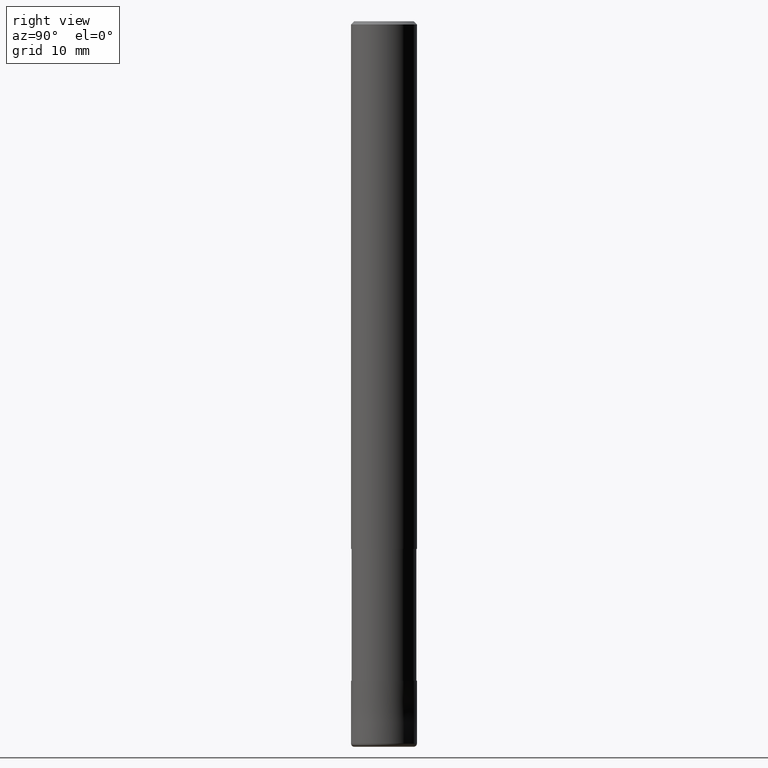
[diagram: clean part render]
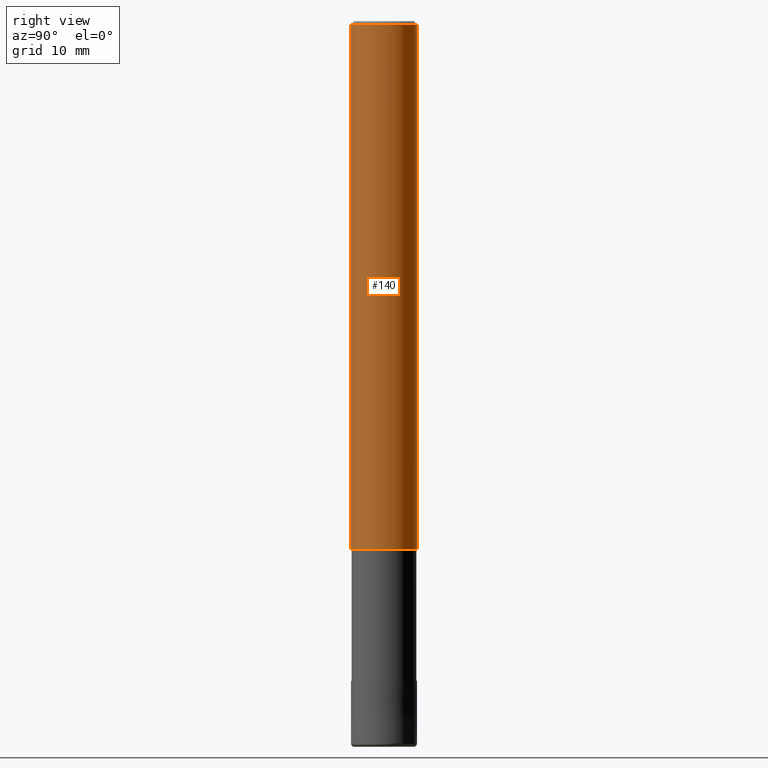
[diagram: same view with one face highlighted and labeled with its STEP entity id]
A machine part, right view. The second image highlights one B-rep face of the part: STEP entity #140.
In plain terms, the highlighted cylindrical surface (edge-blend (fillet) strip) has radius 5 mm, axis along (-0, -0, 1).
Its self-contained STEP definition (entity closure, byte-faithful):
#112=EDGE_CURVE('',#178,#208,#254,.T.);
#128=EDGE_CURVE('',#194,#174,#272,.T.);
#140=ADVANCED_FACE('',(#286),#287,.T.);
#146=EDGE_CURVE('',#174,#208,#294,.T.);
#174=VERTEX_POINT('',#325);
#178=VERTEX_POINT('',#329);
#194=VERTEX_POINT('',#346);
#196=EDGE_CURVE('',#178,#194,#348,.T.);
#208=VERTEX_POINT('',#361);
#254=CIRCLE('',#408,5.0);
#272=CIRCLE('',#428,5.0);
#286=FACE_OUTER_BOUND('',#444,.T.);
#287=CYLINDRICAL_SURFACE('',#445,5.0);
#294=LINE('',#453,#454);
#325=CARTESIAN_POINT('',(6.12303176911189E-016,-5.0,-80.0));
#329=CARTESIAN_POINT('',(0.0,5.0,-0.5));
#346=CARTESIAN_POINT('',(0.0,5.0,-80.0));
#348=LINE('',#521,#522);
#361=CARTESIAN_POINT('',(6.12303176911189E-016,-5.0,-0.5));
#408=AXIS2_PLACEMENT_3D('',#579,#580,#581);
#428=AXIS2_PLACEMENT_3D('',#605,#606,#607);
#444=EDGE_LOOP('',(#627,#628,#629,#630));
#445=AXIS2_PLACEMENT_3D('',#631,#632,#633);
#453=CARTESIAN_POINT('',(6.12303176911189E-016,-5.0,-40.25));
#454=VECTOR('',#640,1.0);
#521=CARTESIAN_POINT('',(-6.12303176911189E-016,5.0,-40.25));
#522=VECTOR('',#698,1.0);
#579=CARTESIAN_POINT('',(0.0,0.0,-0.5));
#580=DIRECTION('',(0.0,0.0,-1.0));
#581=DIRECTION('',(0.0,1.0,0.0));
#605=CARTESIAN_POINT('',(0.0,0.0,-80.0));
#606=DIRECTION('',(0.0,0.0,-1.0));
#607=DIRECTION('',(0.0,1.0,0.0));
#627=ORIENTED_EDGE('',*,*,#196,.F.);
#628=ORIENTED_EDGE('',*,*,#112,.T.);
#629=ORIENTED_EDGE('',*,*,#146,.F.);
#630=ORIENTED_EDGE('',*,*,#128,.F.);
#631=CARTESIAN_POINT('',(0.0,0.0,-40.25));
#632=DIRECTION('',(-0.0,-0.0,1.0));
#633=DIRECTION('',(0.0,1.0,0.0));
#640=DIRECTION('',(-0.0,-0.0,1.0));
#698=DIRECTION('',(0.0,0.0,-1.0));